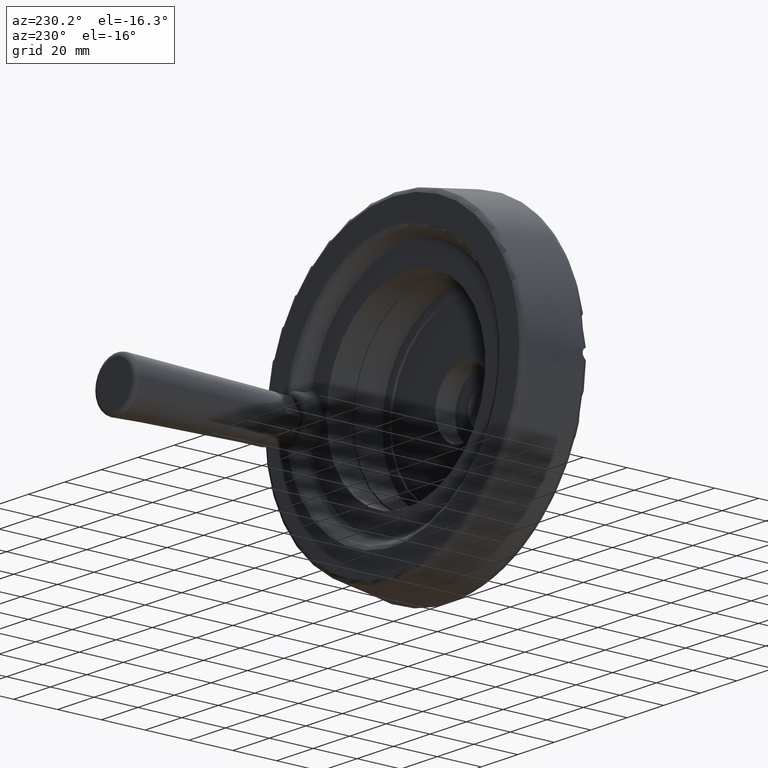
[diagram: clean part render]
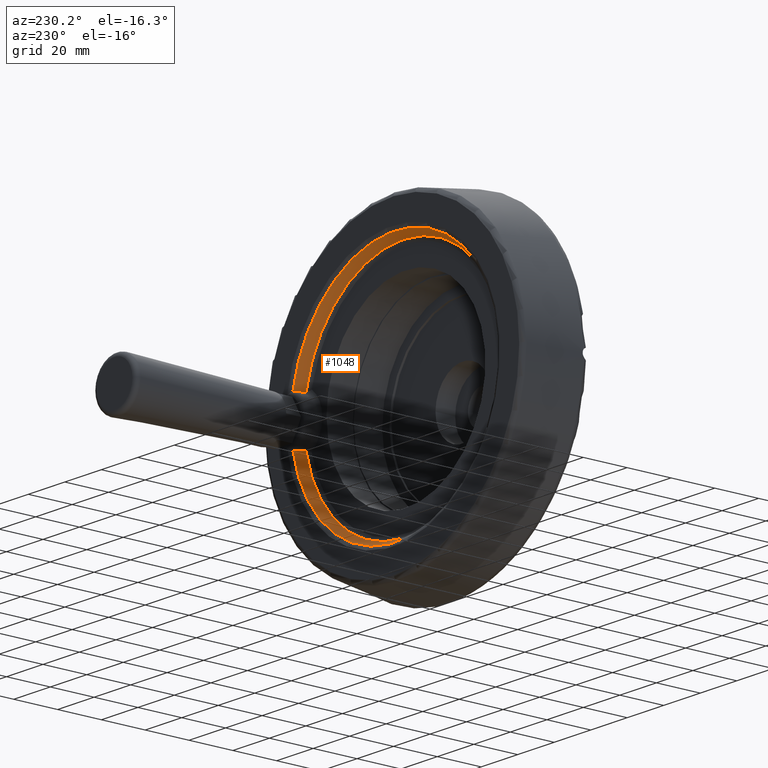
[diagram: same view with one face highlighted and labeled with its STEP entity id]
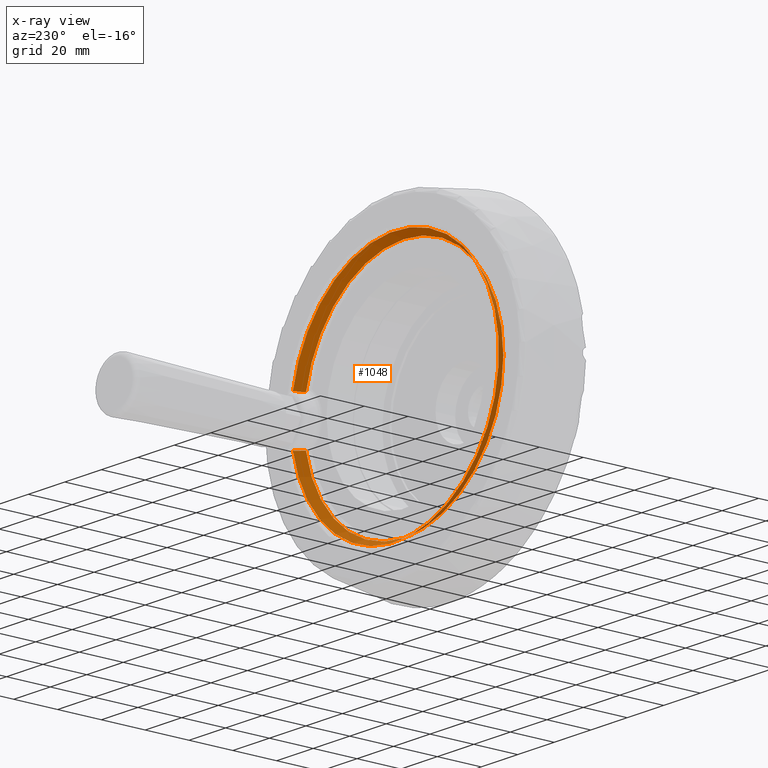
[diagram: x-ray of the same camera — body ghosted, the highlighted face saturated]
A machine part, auxiliary view. The second image highlights one B-rep face of the part: STEP entity #1048.
The next image is the same camera in x-ray: the body ghosted, the highlighted face saturated — about 0% of this face is hidden behind the body in this view.
In plain terms, the highlighted conical surface has half-angle 30.256 deg.
Its self-contained STEP definition (entity closure, byte-faithful):
#42=B_SPLINE_CURVE_WITH_KNOTS('',3,(#1977,#1978,#1979,#1980,#1981,#1982),
 .UNSPECIFIED.,.F.,.F.,(4,2,4),(0.732317087527484,0.779266883177885,0.810480659038848),
 .UNSPECIFIED.);
#43=B_SPLINE_CURVE_WITH_KNOTS('',3,(#1985,#1986,#1987,#1988,#1989,#1990),
 .UNSPECIFIED.,.F.,.F.,(4,2,4),(0.575252649413003,0.583279549532242,0.653296567385866),
 .UNSPECIFIED.);
#44=B_SPLINE_CURVE_WITH_KNOTS('',3,(#1993,#1994,#1995,#1996,#1997,#1998),
 .UNSPECIFIED.,.F.,.F.,(4,2,4),(1.29661434890501,1.55987094116281,1.60104666692098),
 .UNSPECIFIED.);
#45=B_SPLINE_CURVE_WITH_KNOTS('',3,(#2001,#2002,#2003,#2004,#2005,#2006),
 .UNSPECIFIED.,.F.,.F.,(4,2,4),(1.29293112161325,1.33410684737142,1.59736326124232),
 .UNSPECIFIED.);
#47=B_SPLINE_CURVE_WITH_KNOTS('',3,(#2024,#2025,#2026,#2027,#2028,#2029),
 .UNSPECIFIED.,.F.,.F.,(4,2,4),(-0.119512199722505,-0.0940763609480818,
-0.0403565151958003),.UNSPECIFIED.);
#48=B_SPLINE_CURVE_WITH_KNOTS('',3,(#2031,#2032,#2033,#2034,#2035,#2036),
 .UNSPECIFIED.,.F.,.F.,(4,2,4),(-1.36273857091877,-1.33943246619493,-1.28376284814781),
 .UNSPECIFIED.);
#198=CONICAL_SURFACE('',#1173,55.75,30.2564371635292);
#295=FACE_OUTER_BOUND('',#392,.T.);
#392=EDGE_LOOP('',(#955,#956,#957,#958,#959,#960,#961,#962));
#434=CIRCLE('',#1140,54.5788171368886);
#438=CIRCLE('',#1148,56.9211828631114);
#531=VERTEX_POINT('',#1952);
#532=VERTEX_POINT('',#1963);
#533=VERTEX_POINT('',#1976);
#534=VERTEX_POINT('',#1983);
#535=VERTEX_POINT('',#1992);
#536=VERTEX_POINT('',#1999);
#539=VERTEX_POINT('',#2011);
#540=VERTEX_POINT('',#2030);
#663=EDGE_CURVE('',#531,#532,#434,.T.);
#665=EDGE_CURVE('',#533,#532,#42,.T.);
#667=EDGE_CURVE('',#531,#534,#43,.T.);
#668=EDGE_CURVE('',#535,#533,#44,.T.);
#670=EDGE_CURVE('',#534,#536,#45,.T.);
#673=EDGE_CURVE('',#539,#536,#47,.T.);
#674=EDGE_CURVE('',#535,#540,#48,.T.);
#676=EDGE_CURVE('',#540,#539,#438,.T.);
#955=ORIENTED_EDGE('',*,*,#663,.F.);
#956=ORIENTED_EDGE('',*,*,#667,.T.);
#957=ORIENTED_EDGE('',*,*,#670,.T.);
#958=ORIENTED_EDGE('',*,*,#673,.F.);
#959=ORIENTED_EDGE('',*,*,#676,.F.);
#960=ORIENTED_EDGE('',*,*,#674,.F.);
#961=ORIENTED_EDGE('',*,*,#668,.T.);
#962=ORIENTED_EDGE('',*,*,#665,.T.);
#1048=ADVANCED_FACE('',(#295),#198,.F.);
#1140=AXIS2_PLACEMENT_3D('',#1964,#1403,#1404);
#1148=AXIS2_PLACEMENT_3D('',#2048,#1419,#1420);
#1173=AXIS2_PLACEMENT_3D('',#2083,#1469,#1470);
#1403=DIRECTION('center_axis',(-8.13665874685864E-17,1.,1.89803504177774E-32));
#1404=DIRECTION('ref_axis',(-1.,-8.13665874685864E-17,0.));
#1419=DIRECTION('center_axis',(7.80182679825968E-17,-1.,-2.47338603648398E-32));
#1420=DIRECTION('ref_axis',(-1.,-7.80182679825968E-17,0.));
#1469=DIRECTION('center_axis',(-1.23614811126766E-16,1.,0.));
#1470=DIRECTION('ref_axis',(1.,0.,0.));
#1952=CARTESIAN_POINT('',(53.5198510202014,31.9922579489518,-10.6991974856701));
#1963=CARTESIAN_POINT('',(53.5198510202014,31.9922579489519,10.6991974856701));
#1964=CARTESIAN_POINT('Origin',(0.,31.9922579489518,-6.68397737079393E-15));
#1976=CARTESIAN_POINT('',(53.9215136030541,32.6527036446662,10.6545832895801));
#1977=CARTESIAN_POINT('Ctrl Pts',(53.9215136030541,32.6527036446662,10.6545832895801));
#1978=CARTESIAN_POINT('Ctrl Pts',(53.8444423584921,32.5175908917972,10.6380422356528));
#1979=CARTESIAN_POINT('Ctrl Pts',(53.7646875034633,32.3826451673807,10.6356195181566));
#1980=CARTESIAN_POINT('Ctrl Pts',(53.6291545550544,32.1624528083666,10.6587292087092));
#1981=CARTESIAN_POINT('Ctrl Pts',(53.574534510796,32.0760976250585,10.675140114502));
#1982=CARTESIAN_POINT('Ctrl Pts',(53.5198510202014,31.9922579489518,10.6991974856701));
#1983=CARTESIAN_POINT('',(53.9215136030541,32.6527036446662,-10.6545832895801));
#1985=CARTESIAN_POINT('Ctrl Pts',(53.5198510202014,31.9922579489519,-10.6991974856701));
#1986=CARTESIAN_POINT('Ctrl Pts',(53.533981397385,32.0139223714944,-10.6929809891561));
#1987=CARTESIAN_POINT('Ctrl Pts',(53.548117418368,32.0357700233274,-10.6872705151501));
#1988=CARTESIAN_POINT('Ctrl Pts',(53.6855392203273,32.2498164966201,-10.636614262234));
#1989=CARTESIAN_POINT('Ctrl Pts',(53.806620711454,32.451286177524,-10.6299249422727));
#1990=CARTESIAN_POINT('Ctrl Pts',(53.9215136030541,32.6527036446662,-10.6545832895801));
#1992=CARTESIAN_POINT('',(55.4772756514777,35.3472963553352,10.889557451924));
#1993=CARTESIAN_POINT('Ctrl Pts',(55.4772756514772,35.3472963553355,10.889557451924));
#1994=CARTESIAN_POINT('Ctrl Pts',(55.011834696158,34.5507274617516,10.8483363967129));
#1995=CARTESIAN_POINT('Ctrl Pts',(54.5596692218751,33.768419643103,10.7824334421213));
#1996=CARTESIAN_POINT('Ctrl Pts',(54.0580555513847,32.8918789329237,10.6833013159031));
#1997=CARTESIAN_POINT('Ctrl Pts',(53.9899155470694,32.7726183419053,10.6692637355897));
#1998=CARTESIAN_POINT('Ctrl Pts',(53.9215136030541,32.6527036446662,10.6545832895801));
#1999=CARTESIAN_POINT('',(55.4772756514777,35.3472963553352,-10.8895574519241));
#2001=CARTESIAN_POINT('Ctrl Pts',(53.9215136030541,32.6527036446662,-10.6545832895801));
#2002=CARTESIAN_POINT('Ctrl Pts',(53.9899155470694,32.7726183419053,-10.6692637355897));
#2003=CARTESIAN_POINT('Ctrl Pts',(54.0580555513847,32.8918789329236,-10.6833013159031));
#2004=CARTESIAN_POINT('Ctrl Pts',(54.5596689279467,33.7684191294802,-10.7824333840332));
#2005=CARTESIAN_POINT('Ctrl Pts',(55.0118350513579,34.5507280696506,-10.8483364281706));
#2006=CARTESIAN_POINT('Ctrl Pts',(55.4772756514772,35.3472963553355,-10.889557451924));
#2011=CARTESIAN_POINT('',(55.8886114655265,36.0077420510482,-10.7927830975698));
#2024=CARTESIAN_POINT('Ctrl Pts',(55.8886114655265,36.0077420510482,-10.7927830975698));
#2025=CARTESIAN_POINT('Ctrl Pts',(55.8440098115492,35.9407409933549,-10.817616342544));
#2026=CARTESIAN_POINT('Ctrl Pts',(55.7992245330883,35.8719521882122,-10.837753347344));
#2027=CARTESIAN_POINT('Ctrl Pts',(55.6601834078107,35.6537578310116,-10.8858986601858));
#2028=CARTESIAN_POINT('Ctrl Pts',(55.567161247295,35.5011291214286,-10.8975180300929));
#2029=CARTESIAN_POINT('Ctrl Pts',(55.4772756514772,35.3472963553355,-10.889557451924));
#2030=CARTESIAN_POINT('',(55.8886114655265,36.0077420510482,10.7927830975698));
#2031=CARTESIAN_POINT('Ctrl Pts',(55.4772756514772,35.3472963553355,10.889557451924));
#2032=CARTESIAN_POINT('Ctrl Pts',(55.516361218862,35.4141885074142,10.8930190044855));
#2033=CARTESIAN_POINT('Ctrl Pts',(55.5560710727232,35.4809078082485,10.89277630691));
#2034=CARTESIAN_POINT('Ctrl Pts',(55.6922883309851,35.7055139978985,10.878950821107));
#2035=CARTESIAN_POINT('Ctrl Pts',(55.7906030531469,35.8605128183471,10.8473520809397));
#2036=CARTESIAN_POINT('Ctrl Pts',(55.8886114655265,36.0077420510482,10.7927830975698));
#2048=CARTESIAN_POINT('Origin',(4.44089209850063E-15,36.0077420510482,-6.97083443969906E-15));
#2083=CARTESIAN_POINT('Origin',(-4.20282169345519E-15,34.,0.));